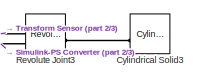
[diagram: root canvas - part 1/3, top right region]
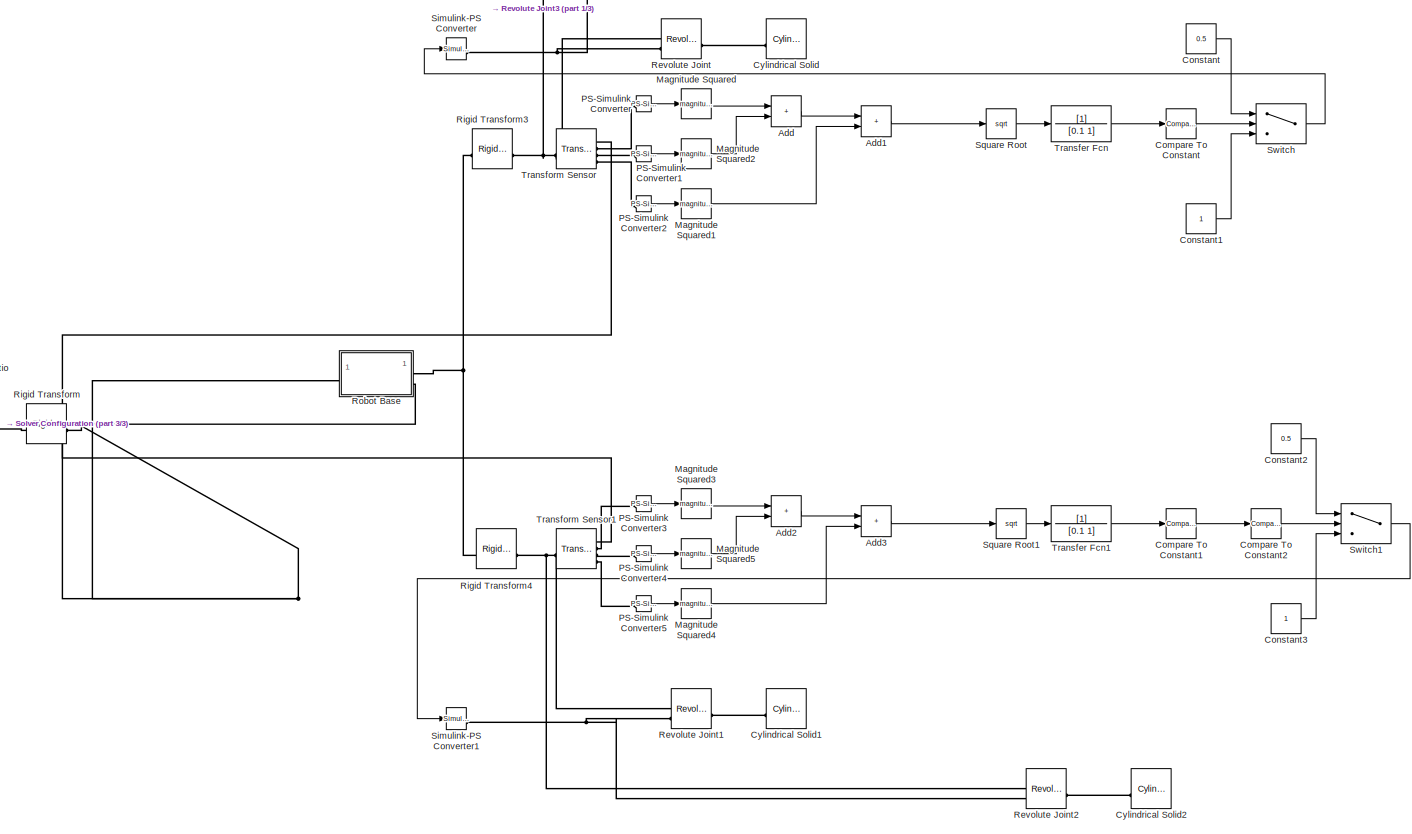
[diagram: root canvas - part 2/3, most of the canvas]
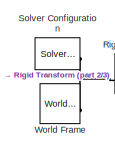
[diagram: root canvas - part 3/3, middle left region]
MODEL slx_3a3dc9bcfe34
KIND model
CONFIG AbsTol = auto
CONFIG EnableMultiTasking = off
CONFIG FixedStep = auto
CONFIG MaxStep = auto
CONFIG MinStep = auto
CONFIG RelTol = 1e-3
CONFIG SampleTimeConstraint = Unconstrained
CONFIG SolverName = VariableStepAuto
CONFIG StartTime = 0.0
CONFIG StopTime = inf
BLOCK [Sum] Add
  IconShape = rectangular
BLOCK [Sum] Add1
  IconShape = rectangular
BLOCK [Sum] Add2
  IconShape = rectangular
BLOCK [Sum] Add3
  IconShape = rectangular
BLOCK [Reference] Compare To Constant  REF=simulink/Logic and Bit
Operations/Compare
To Constant
  SourceBlock = simulink/Logic and Bit\nOperations/Compare\nTo Constant
  SourceType = Compare To Constant
BLOCK [Reference] Compare To Constant1  REF=simulink/Logic and Bit
Operations/Compare
To Constant
  SourceBlock = simulink/Logic and Bit\nOperations/Compare\nTo Constant
  SourceType = Compare To Constant
BLOCK [Reference] Compare To Constant2  REF=simulink/Logic and Bit
Operations/Compare
To Constant
  SourceBlock = simulink/Logic and Bit\nOperations/Compare\nTo Constant
  SourceType = Compare To Constant
BLOCK [Constant] Constant
  Value = 0.5
BLOCK [Constant] Constant1
BLOCK [Constant] Constant2
  Value = 0.5
BLOCK [Constant] Constant3
BLOCK [Reference] Cylindrical Solid  REF=sm_lib/Body Elements/Cylindrical Solid
  SourceBlock = sm_lib/Body Elements/Cylindrical Solid
  SourceType = Cylindrical Solid
BLOCK [Reference] Cylindrical Solid1  REF=sm_lib/Body Elements/Cylindrical Solid
  SourceBlock = sm_lib/Body Elements/Cylindrical Solid
  SourceType = Cylindrical Solid
BLOCK [Reference] Cylindrical Solid2  REF=sm_lib/Body Elements/Cylindrical Solid
  SourceBlock = sm_lib/Body Elements/Cylindrical Solid
  SourceType = Cylindrical Solid
BLOCK [Reference] Cylindrical Solid3  REF=sm_lib/Body Elements/Cylindrical Solid
  SourceBlock = sm_lib/Body Elements/Cylindrical Solid
  SourceType = Cylindrical Solid
BLOCK [Math] Magnitude Squared
  Operator = magnitude^2
BLOCK [Math] Magnitude Squared1
  Operator = magnitude^2
BLOCK [Math] Magnitude Squared2
  Operator = magnitude^2
BLOCK [Math] Magnitude Squared3
  Operator = magnitude^2
BLOCK [Math] Magnitude Squared4
  Operator = magnitude^2
BLOCK [Math] Magnitude Squared5
  Operator = magnitude^2
BLOCK [Reference] PS-Simulink Converter  REF=nesl_utility/PS-Simulink
Converter
  SourceBlock = nesl_utility/PS-Simulink\nConverter
  SourceType = PS-Simulink\nConverter
BLOCK [Reference] PS-Simulink Converter1  REF=nesl_utility/PS-Simulink
Converter
  SourceBlock = nesl_utility/PS-Simulink\nConverter
  SourceType = PS-Simulink\nConverter
BLOCK [Reference] PS-Simulink Converter2  REF=nesl_utility/PS-Simulink
Converter
  SourceBlock = nesl_utility/PS-Simulink\nConverter
  SourceType = PS-Simulink\nConverter
BLOCK [Reference] PS-Simulink Converter3  REF=nesl_utility/PS-Simulink
Converter
  SourceBlock = nesl_utility/PS-Simulink\nConverter
  SourceType = PS-Simulink\nConverter
BLOCK [Reference] PS-Simulink Converter4  REF=nesl_utility/PS-Simulink
Converter
  SourceBlock = nesl_utility/PS-Simulink\nConverter
  SourceType = PS-Simulink\nConverter
BLOCK [Reference] PS-Simulink Converter5  REF=nesl_utility/PS-Simulink
Converter
  SourceBlock = nesl_utility/PS-Simulink\nConverter
  SourceType = PS-Simulink\nConverter
BLOCK [Reference] Revolute Joint  REF=sm_lib/Joints/Revolute Joint
  SourceBlock = sm_lib/Joints/Revolute Joint
  SourceType = Revolute Joint
BLOCK [Reference] Revolute Joint1  REF=sm_lib/Joints/Revolute Joint
  SourceBlock = sm_lib/Joints/Revolute Joint
  SourceType = Revolute Joint
BLOCK [Reference] Revolute Joint2  REF=sm_lib/Joints/Revolute Joint
  SourceBlock = sm_lib/Joints/Revolute Joint
  SourceType = Revolute Joint
BLOCK [Reference] Revolute Joint3  REF=sm_lib/Joints/Revolute Joint
  SourceBlock = sm_lib/Joints/Revolute Joint
  SourceType = Revolute Joint
BLOCK [Reference] Rigid Transform  REF=sm_lib/Frames and
Transforms/Rigid
Transform
  SourceBlock = sm_lib/Frames and\nTransforms/Rigid\nTransform
  SourceType = Rigid\nTransform
BLOCK [Reference] Rigid Transform3  REF=sm_lib/Frames and
Transforms/Rigid
Transform
  SourceBlock = sm_lib/Frames and\nTransforms/Rigid\nTransform
  SourceType = Rigid\nTransform
BLOCK [Reference] Rigid Transform4  REF=sm_lib/Frames and
Transforms/Rigid
Transform
  SourceBlock = sm_lib/Frames and\nTransforms/Rigid\nTransform
  SourceType = Rigid\nTransform
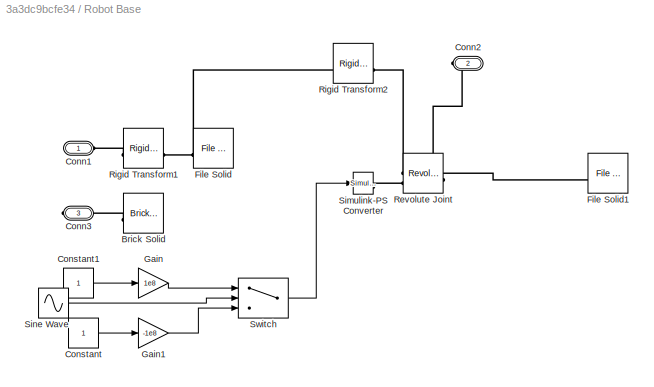
BLOCK [SubSystem] Robot Base
BLOCK [Reference] Robot Base/Brick Solid  REF=sm_lib/Body Elements/Brick Solid
  SourceBlock = sm_lib/Body Elements/Brick Solid
  SourceType = Brick Solid
BLOCK [PMIOPort] Robot Base/Conn1
  Side = Left
BLOCK [PMIOPort] Robot Base/Conn2
  Port = 2
  Side = Right
BLOCK [PMIOPort] Robot Base/Conn3
  Port = 3
  Side = Right
BLOCK [Constant] Robot Base/Constant
BLOCK [Constant] Robot Base/Constant1
BLOCK [Reference] Robot Base/File Solid  REF=sm_lib/Body Elements/File Solid
  SourceBlock = sm_lib/Body Elements/File Solid
  SourceType = File Solid
BLOCK [Reference] Robot Base/File Solid1  REF=sm_lib/Body Elements/File Solid
  SourceBlock = sm_lib/Body Elements/File Solid
  SourceType = File Solid
BLOCK [Gain] Robot Base/Gain
  Gain = 1e8
BLOCK [Gain] Robot Base/Gain1
  Gain = -1e8
BLOCK [Reference] Robot Base/Revolute Joint  REF=sm_lib/Joints/Revolute Joint
  SourceBlock = sm_lib/Joints/Revolute Joint
  SourceType = Revolute Joint
BLOCK [Reference] Robot Base/Rigid Transform1  REF=sm_lib/Frames and
Transforms/Rigid
Transform
  SourceBlock = sm_lib/Frames and\nTransforms/Rigid\nTransform
  SourceType = Rigid\nTransform
BLOCK [Reference] Robot Base/Rigid Transform2  REF=sm_lib/Frames and
Transforms/Rigid
Transform
  SourceBlock = sm_lib/Frames and\nTransforms/Rigid\nTransform
  SourceType = Rigid\nTransform
BLOCK [Reference] Robot Base/Simulink-PS Converter  REF=nesl_utility/Simulink-PS
Converter
  SourceBlock = nesl_utility/Simulink-PS\nConverter
  SourceType = Simulink-PS\nConverter
BLOCK [Sin] Robot Base/Sine Wave
  Frequency = 3
  SampleTime = 0
BLOCK [Switch] Robot Base/Switch
  Criteria = u2 > Threshold
  InputSameDT = off
  SaturateOnIntegerOverflow = off
BLOCK [Reference] Simulink-PS Converter  REF=nesl_utility/Simulink-PS
Converter
  SourceBlock = nesl_utility/Simulink-PS\nConverter
  SourceType = Simulink-PS\nConverter
BLOCK [Reference] Simulink-PS Converter1  REF=nesl_utility/Simulink-PS
Converter
  SourceBlock = nesl_utility/Simulink-PS\nConverter
  SourceType = Simulink-PS\nConverter
BLOCK [Reference] Solver Configuration  REF=nesl_utility/Solver
Configuration
  SourceBlock = nesl_utility/Solver\nConfiguration
  SourceType = Solver\nConfiguration
BLOCK [Sqrt] Square Root
BLOCK [Sqrt] Square Root1
BLOCK [Switch] Switch
  Criteria = u2 > Threshold
  InputSameDT = off
  SaturateOnIntegerOverflow = off
BLOCK [Switch] Switch1
  Criteria = u2 > Threshold
  InputSameDT = off
  SaturateOnIntegerOverflow = off
BLOCK [TransferFcn] Transfer Fcn
  Denominator = [0.1 1]
BLOCK [TransferFcn] Transfer Fcn1
  Denominator = [0.1 1]
BLOCK [Reference] Transform Sensor  REF=sm_lib/Frames and
Transforms/Transform
Sensor
  SourceBlock = sm_lib/Frames and\nTransforms/Transform\nSensor
  SourceType = Transform\nSensor
BLOCK [Reference] Transform Sensor1  REF=sm_lib/Frames and
Transforms/Transform
Sensor
  SourceBlock = sm_lib/Frames and\nTransforms/Transform\nSensor
  SourceType = Transform\nSensor
BLOCK [Reference] World Frame  REF=sm_lib/Frames and
Transforms/World Frame
  SourceBlock = sm_lib/Frames and\nTransforms/World Frame
  SourceType = World Frame
LINE Add1:1 -> Square Root:1
LINE Add2:1 -> Add3:1
LINE Add3:1 -> Square Root1:1
LINE Add:1 -> Add1:1
LINE Compare To Constant1:1 -> Compare To Constant2:1
LINE Compare To Constant2:1 -> Switch1:2
LINE Compare To Constant:1 -> Switch:2
LINE Constant1:1 -> Switch:3
LINE Constant2:1 -> Switch1:1
LINE Constant3:1 -> Switch1:3
LINE Constant:1 -> Switch:1
LINE Magnitude Squared1:1 -> Add1:2
LINE Magnitude Squared2:1 -> Add:2
LINE Magnitude Squared3:1 -> Add2:1
LINE Magnitude Squared4:1 -> Add3:2
LINE Magnitude Squared5:1 -> Add2:2
LINE Magnitude Squared:1 -> Add:1
LINE PS-Simulink Converter1:1 -> Magnitude Squared2:1
LINE PS-Simulink Converter2:1 -> Magnitude Squared1:1
LINE PS-Simulink Converter3:1 -> Magnitude Squared3:1
LINE PS-Simulink Converter4:1 -> Magnitude Squared5:1
LINE PS-Simulink Converter5:1 -> Magnitude Squared4:1
LINE PS-Simulink Converter:1 -> Magnitude Squared:1
LINE Robot Base/Constant1:1 -> Robot Base/Gain:1
LINE Robot Base/Constant:1 -> Robot Base/Gain1:1
LINE Robot Base/Gain1:1 -> Robot Base/Switch:3
LINE Robot Base/Gain:1 -> Robot Base/Switch:1
LINE Robot Base/Sine Wave:1 -> Robot Base/Switch:2
LINE Robot Base/Switch:1 -> Robot Base/Simulink-PS Converter:1
LINE Square Root1:1 -> Transfer Fcn1:1
LINE Square Root:1 -> Transfer Fcn:1
LINE Switch1:1 -> Simulink-PS Converter1:1
LINE Switch:1 -> Simulink-PS Converter:1
LINE Transfer Fcn1:1 -> Compare To Constant1:1
LINE Transfer Fcn:1 -> Compare To Constant:1
PLINE Cylindrical Solid1:RConn1 -- Revolute Joint1:RConn1
PLINE Cylindrical Solid2:RConn1 -- Revolute Joint2:RConn1
PLINE Cylindrical Solid3:RConn1 -- Revolute Joint3:RConn1
PLINE Cylindrical Solid:RConn1 -- Revolute Joint:RConn1
PLINE PS-Simulink Converter1:LConn1 -- Transform Sensor:RConn3
PLINE PS-Simulink Converter2:LConn1 -- Transform Sensor:RConn4
PLINE PS-Simulink Converter3:LConn1 -- Transform Sensor1:RConn2
PLINE PS-Simulink Converter4:LConn1 -- Transform Sensor1:RConn3
PLINE PS-Simulink Converter5:LConn1 -- Transform Sensor1:RConn4
PLINE PS-Simulink Converter:LConn1 -- Transform Sensor:RConn2
PNET net1: Revolute Joint1:LConn1 -- Revolute Joint2:LConn1 -- Rigid Transform4:RConn1 -- Transform Sensor1:LConn1
PNET net2: Revolute Joint1:LConn2 -- Revolute Joint2:LConn2 -- Simulink-PS Converter1:RConn1
PNET net3: Revolute Joint3:LConn1 -- Revolute Joint:LConn1 -- Rigid Transform3:RConn1 -- Transform Sensor:LConn1
PNET net4: Revolute Joint3:LConn2 -- Revolute Joint:LConn2 -- Simulink-PS Converter:RConn1
PNET net5: Rigid Transform3:LConn1 -- Rigid Transform4:LConn1 -- Robot Base:RConn1
PNET net6: Rigid Transform:LConn1 -- Solver Configuration:RConn1 -- World Frame:RConn1
PNET net7: Rigid Transform:RConn1 -- Robot Base:LConn1 -- Robot Base:RConn2 -- Transform Sensor1:RConn1 -- Transform Sensor:RConn1
PLINE Robot Base/Brick Solid:RConn1 -- Robot Base/Conn3:RConn1
PLINE Robot Base/Conn1:RConn1 -- Robot Base/Rigid Transform1:LConn1
PNET net8: Robot Base/Conn2:RConn1 -- Robot Base/File Solid1:RConn1 -- Robot Base/Revolute Joint:RConn1
PNET net9: Robot Base/File Solid:RConn1 -- Robot Base/Rigid Transform1:RConn1 -- Robot Base/Rigid Transform2:LConn1
PLINE Robot Base/Revolute Joint:LConn1 -- Robot Base/Rigid Transform2:RConn1
PLINE Robot Base/Revolute Joint:LConn2 -- Robot Base/Simulink-PS Converter:RConn1
note: PNET lines group multi-terminal physical nets as a canonical sorted terminal list (undirected conserving connections); 2-terminal nets keep the pairwise PLINE form
